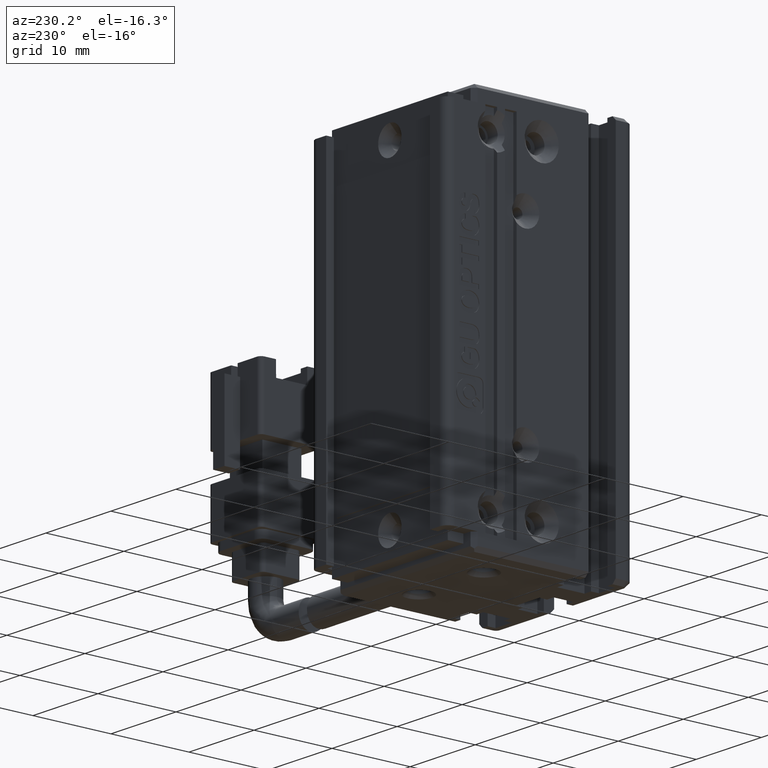
[diagram: clean part render]
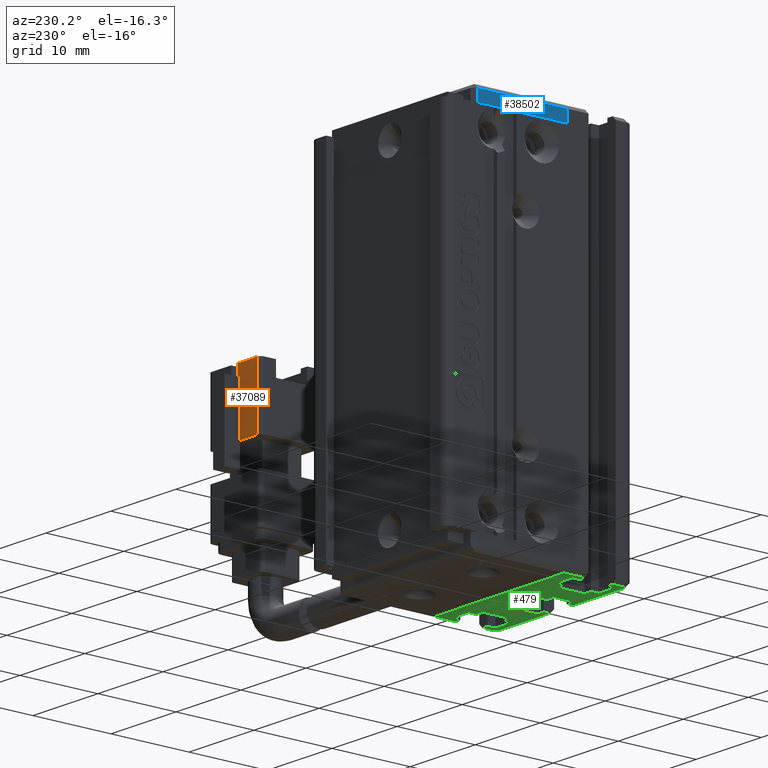
[diagram: same view with three faces highlighted in distinct colors, each labeled with its STEP entity id]
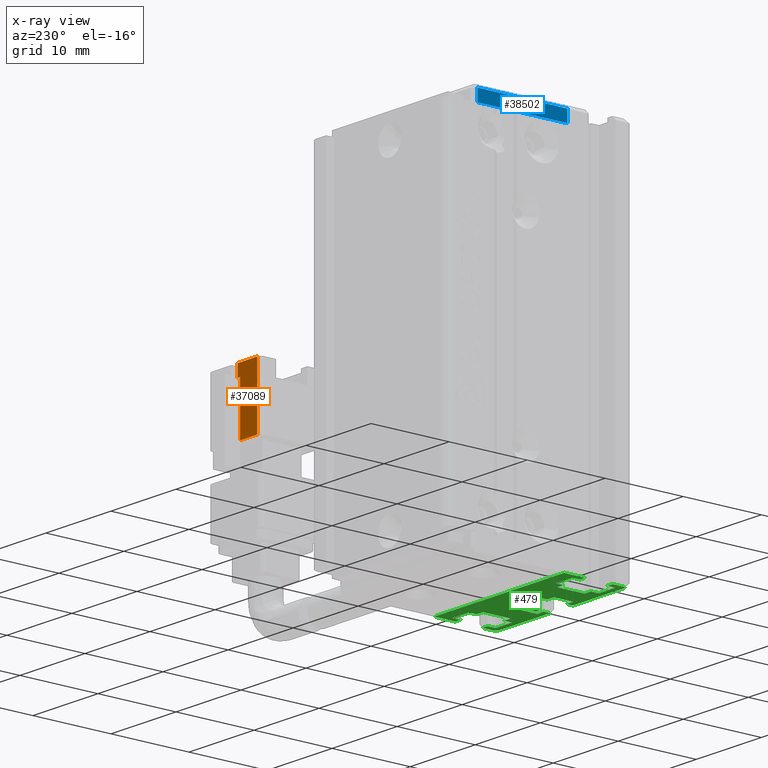
[diagram: x-ray of the same camera — body ghosted, the three highlighted faces saturated]
A machine part, auxiliary view with three faces highlighted in distinct colors.
The next image is the same camera in x-ray (body ghosted, the three faces saturated) — at least one of them is partly hidden behind the body in this view.
Their STEP definitions:

[orange] entity #37089 — the highlighted planar face has unit normal (0, -1, 0).
#3329 = CARTESIAN_POINT ( 'NONE',  ( 73.55037974683534700, 25.49073232304858600, -110.4500000000000000 ) ) ;
#3606 = CARTESIAN_POINT ( 'NONE',  ( 70.92537974683534700, 25.49073232304857600, -108.9500000000000000 ) ) ;
#3851 = DIRECTION ( 'NONE',  ( 3.428144012049399300E-015, -1.000000000000000000, 5.551115123125780200E-017 ) ) ;
#4547 = VECTOR ( 'NONE', #29387, 1000.000000000000000 ) ;
#5062 = VERTEX_POINT ( 'NONE', #26596 ) ;
#6724 = VECTOR ( 'NONE', #33673, 1000.000000000000000 ) ;
#7902 = FACE_OUTER_BOUND ( 'NONE', #37072, .T. ) ;
#7913 = CARTESIAN_POINT ( 'NONE',  ( 73.92537974683534700, 25.49073232304858600, -108.9500000000000000 ) ) ;
#8420 = ORIENTED_EDGE ( 'NONE', *, *, #9900, .F. ) ;
#8443 = ORIENTED_EDGE ( 'NONE', *, *, #26200, .F. ) ;
#9714 = PLANE ( 'NONE',  #18787 ) ;
#9900 = EDGE_CURVE ( 'NONE', #26946, #17420, #10588, .T. ) ;
#10588 = LINE ( 'NONE', #35092, #4547 ) ;
#10915 = VECTOR ( 'NONE', #21508, 1000.000000000000000 ) ;
#11242 = ORIENTED_EDGE ( 'NONE', *, *, #35385, .F. ) ;
#13291 = DIRECTION ( 'NONE',  ( 1.041348031262155300E-030, -5.551115123125780200E-017, -1.000000000000000000 ) ) ;
#13407 = CARTESIAN_POINT ( 'NONE',  ( 70.92537974683534700, 25.49073232304857600, -108.9500000000000000 ) ) ;
#13936 = LINE ( 'NONE', #23466, #34993 ) ;
#15108 = VERTEX_POINT ( 'NONE', #22713 ) ;
#15195 = VECTOR ( 'NONE', #13291, 1000.000000000000000 ) ;
#15701 = CARTESIAN_POINT ( 'NONE',  ( 74.92537974683534700, 25.49073232304859000, -110.4500000000000000 ) ) ;
#15712 = DIRECTION ( 'NONE',  ( -1.000000000000000000, -3.428144012049399300E-015, -8.510478105667503400E-031 ) ) ;
#17420 = VERTEX_POINT ( 'NONE', #3329 ) ;
#18787 = AXIS2_PLACEMENT_3D ( 'NONE', #3606, #3851, #15712 ) ;
#19405 = VECTOR ( 'NONE', #25468, 1000.000000000000000 ) ;
#19867 = LINE ( 'NONE', #15701, #10915 ) ;
#21508 = DIRECTION ( 'NONE',  ( -1.000000000000000000, -3.304235192336770000E-015, -8.579261317967046800E-031 ) ) ;
#22713 = CARTESIAN_POINT ( 'NONE',  ( 73.92537974683534700, 25.49073232304858600, -108.9500000000000000 ) ) ;
#23466 = CARTESIAN_POINT ( 'NONE',  ( 70.92537974683534700, 25.49073232304857600, -108.9500000000000000 ) ) ;
#24062 = LINE ( 'NONE', #24894, #6724 ) ;
#24280 = CARTESIAN_POINT ( 'NONE',  ( 70.92537974683534700, 25.49073232304857600, -116.9500000000000000 ) ) ;
#24894 = CARTESIAN_POINT ( 'NONE',  ( 77.92537974683534700, 25.49073232304859700, -116.9500000000000000 ) ) ;
#25468 = DIRECTION ( 'NONE',  ( -1.041348031262155300E-030, 5.551115123125780200E-017, 1.000000000000000000 ) ) ;
#25869 = CARTESIAN_POINT ( 'NONE',  ( 73.92537974683534700, 25.49073232304858600, -110.4500000000000000 ) ) ;
#26200 = EDGE_CURVE ( 'NONE', #5062, #38131, #28363, .T. ) ;
#26399 = VERTEX_POINT ( 'NONE', #25869 ) ;
#26596 = CARTESIAN_POINT ( 'NONE',  ( 70.92537974683534700, 25.49073232304857600, -108.9500000000000000 ) ) ;
#26946 = VERTEX_POINT ( 'NONE', #34570 ) ;
#28363 = LINE ( 'NONE', #13407, #15195 ) ;
#29279 = ORIENTED_EDGE ( 'NONE', *, *, #35047, .F. ) ;
#29360 = ORIENTED_EDGE ( 'NONE', *, *, #35377, .T. ) ;
#29387 = DIRECTION ( 'NONE',  ( -1.041348031262155300E-030, 5.551115123125780200E-017, 1.000000000000000000 ) ) ;
#32502 = DIRECTION ( 'NONE',  ( -1.000000000000000000, -3.428144012049399300E-015, -8.510478105667503400E-031 ) ) ;
#33673 = DIRECTION ( 'NONE',  ( 1.000000000000000000, 3.304235192336770000E-015, 8.579261317967046800E-031 ) ) ;
#34403 = LINE ( 'NONE', #7913, #19405 ) ;
#34570 = CARTESIAN_POINT ( 'NONE',  ( 73.55037974683534700, 25.49073232304858600, -116.9500000000000000 ) ) ;
#34993 = VECTOR ( 'NONE', #32502, 1000.000000000000000 ) ;
#35047 = EDGE_CURVE ( 'NONE', #26399, #15108, #34403, .T. ) ;
#35092 = CARTESIAN_POINT ( 'NONE',  ( 73.55037974683534700, 25.49073232304858600, -108.9500000000000000 ) ) ;
#35377 = EDGE_CURVE ( 'NONE', #26399, #17420, #19867, .T. ) ;
#35385 = EDGE_CURVE ( 'NONE', #38131, #26946, #24062, .T. ) ;
#36790 = ORIENTED_EDGE ( 'NONE', *, *, #38657, .F. ) ;
#37072 = EDGE_LOOP ( 'NONE', ( #8420, #11242, #8443, #36790, #29279, #29360 ) ) ;
#37089 = ADVANCED_FACE ( 'NONE', ( #7902 ), #9714, .F. ) ;
#38131 = VERTEX_POINT ( 'NONE', #24280 ) ;
#38657 = EDGE_CURVE ( 'NONE', #15108, #5062, #13936, .T. ) ;

[blue] entity #38502 — the highlighted planar face has unit normal (1, 0, 0).
#567 = DIRECTION ( 'NONE',  ( 0.0000000000000000000, 1.000000000000000000, 0.0000000000000000000 ) ) ;
#1203 = CARTESIAN_POINT ( 'NONE',  ( 30.42537974683542100, 19.49073232304837000, -91.50000000000001400 ) ) ;
#2361 = VERTEX_POINT ( 'NONE', #22756 ) ;
#3057 = ORIENTED_EDGE ( 'NONE', *, *, #6585, .F. ) ;
#3116 = LINE ( 'NONE', #15576, #33969 ) ;
#5065 = EDGE_LOOP ( 'NONE', ( #18022, #38801, #6761, #3057 ) ) ;
#5463 = CARTESIAN_POINT ( 'NONE',  ( 30.42537974683542100, 30.99073232304836600, -93.00000000000001400 ) ) ;
#6585 = EDGE_CURVE ( 'NONE', #23873, #17386, #34450, .T. ) ;
#6761 = ORIENTED_EDGE ( 'NONE', *, *, #18987, .T. ) ;
#9544 = CARTESIAN_POINT ( 'NONE',  ( 30.42537974683542100, 30.99073232304835900, -98.00000000000001400 ) ) ;
#11137 = CARTESIAN_POINT ( 'NONE',  ( 30.42537974683542100, 19.49073232304837000, -98.00000000000001400 ) ) ;
#11263 = DIRECTION ( 'NONE',  ( 1.000000000000000000, 0.0000000000000000000, 0.0000000000000000000 ) ) ;
#13315 = DIRECTION ( 'NONE',  ( -0.0000000000000000000, -0.0000000000000000000, 1.000000000000000000 ) ) ;
#13452 = VERTEX_POINT ( 'NONE', #5463 ) ;
#13482 = FACE_OUTER_BOUND ( 'NONE', #5065, .T. ) ;
#14237 = EDGE_CURVE ( 'NONE', #13452, #23873, #24817, .T. ) ;
#15320 = EDGE_CURVE ( 'NONE', #2361, #13452, #3116, .T. ) ;
#15576 = CARTESIAN_POINT ( 'NONE',  ( 30.42537974683542100, 19.49073232304837000, -93.00000000000001400 ) ) ;
#17386 = VERTEX_POINT ( 'NONE', #1203 ) ;
#17575 = DIRECTION ( 'NONE',  ( -0.0000000000000000000, -1.000000000000000000, -0.0000000000000000000 ) ) ;
#17758 = VECTOR ( 'NONE', #30523, 1000.000000000000000 ) ;
#18022 = ORIENTED_EDGE ( 'NONE', *, *, #14237, .F. ) ;
#18987 = EDGE_CURVE ( 'NONE', #2361, #17386, #37083, .T. ) ;
#19231 = CARTESIAN_POINT ( 'NONE',  ( 30.42537974683542100, 30.99073232304836600, -91.50000000000001400 ) ) ;
#22756 = CARTESIAN_POINT ( 'NONE',  ( 30.42537974683542100, 19.49073232304837000, -93.00000000000001400 ) ) ;
#23873 = VERTEX_POINT ( 'NONE', #19231 ) ;
#24817 = LINE ( 'NONE', #9544, #17758 ) ;
#24888 = AXIS2_PLACEMENT_3D ( 'NONE', #11137, #11263, #29126 ) ;
#28775 = CARTESIAN_POINT ( 'NONE',  ( 30.42537974683542100, 19.49073232304837000, -91.50000000000001400 ) ) ;
#29126 = DIRECTION ( 'NONE',  ( 0.0000000000000000000, 0.0000000000000000000, -1.000000000000000000 ) ) ;
#29245 = PLANE ( 'NONE',  #24888 ) ;
#30523 = DIRECTION ( 'NONE',  ( -0.0000000000000000000, -0.0000000000000000000, 1.000000000000000000 ) ) ;
#31297 = CARTESIAN_POINT ( 'NONE',  ( 30.42537974683542500, 19.49073232304837000, -98.00000000000001400 ) ) ;
#33969 = VECTOR ( 'NONE', #567, 1000.000000000000000 ) ;
#33998 = VECTOR ( 'NONE', #17575, 1000.000000000000000 ) ;
#34450 = LINE ( 'NONE', #28775, #33998 ) ;
#35716 = VECTOR ( 'NONE', #13315, 1000.000000000000000 ) ;
#37083 = LINE ( 'NONE', #31297, #35716 ) ;
#38502 = ADVANCED_FACE ( 'NONE', ( #13482 ), #29245, .F. ) ;
#38801 = ORIENTED_EDGE ( 'NONE', *, *, #15320, .F. ) ;

[green] entity #479 — the highlighted planar face has unit normal (-0, 0, 1).
#479 = ADVANCED_FACE ( 'NONE', ( #23830 ), #27968, .F. ) ;
#481 = AXIS2_PLACEMENT_3D ( 'NONE', #11800, #20358, #32691 ) ;
#577 = LINE ( 'NONE', #2190, #37074 ) ;
#753 = LINE ( 'NONE', #33788, #4029 ) ;
#872 = ORIENTED_EDGE ( 'NONE', *, *, #24630, .F. ) ;
#1078 = DIRECTION ( 'NONE',  ( -1.000000000000000000, -0.0000000000000000000, -0.0000000000000000000 ) ) ;
#1132 = LINE ( 'NONE', #36362, #32050 ) ;
#1142 = LINE ( 'NONE', #18196, #12822 ) ;
#1168 = CARTESIAN_POINT ( 'NONE',  ( 31.72537974683542600, 12.29073232304837200, -139.0000000000000000 ) ) ;
#1621 = DIRECTION ( 'NONE',  ( 1.000000000000000000, 0.0000000000000000000, 0.0000000000000000000 ) ) ;
#1889 = VERTEX_POINT ( 'NONE', #38742 ) ;
#1904 = LINE ( 'NONE', #22378, #15907 ) ;
#1905 = ORIENTED_EDGE ( 'NONE', *, *, #16272, .T. ) ;
#1932 = DIRECTION ( 'NONE',  ( 1.000000000000000000, 0.0000000000000000000, 0.0000000000000000000 ) ) ;
#2006 = VERTEX_POINT ( 'NONE', #20688 ) ;
#2106 = AXIS2_PLACEMENT_3D ( 'NONE', #9971, #21766, #18994 ) ;
#2187 = CIRCLE ( 'NONE', #481, 0.4999999999909122100 ) ;
#2190 = CARTESIAN_POINT ( 'NONE',  ( 47.62537974683537800, 7.083797468354414500, -139.0000000000000000 ) ) ;
#2421 = EDGE_CURVE ( 'NONE', #12544, #17037, #2657, .T. ) ;
#2657 = LINE ( 'NONE', #23399, #3155 ) ;
#2685 = VERTEX_POINT ( 'NONE', #6866 ) ;
#2703 = CARTESIAN_POINT ( 'NONE',  ( 34.22537974683547200, 7.083797468354414500, -139.0000000000000000 ) ) ;
#2783 = LINE ( 'NONE', #24554, #7887 ) ;
#2900 = DIRECTION ( 'NONE',  ( 3.469446951953607900E-015, -1.000000000000000000, 0.0000000000000000000 ) ) ;
#3155 = VECTOR ( 'NONE', #26540, 1000.000000000000000 ) ;
#3221 = EDGE_CURVE ( 'NONE', #5473, #2006, #8115, .T. ) ;
#3446 = VERTEX_POINT ( 'NONE', #22303 ) ;
#3469 = CARTESIAN_POINT ( 'NONE',  ( 31.72537974683542600, 17.79073232304837000, -139.0000000000000000 ) ) ;
#3472 = DIRECTION ( 'NONE',  ( 1.000000000000000000, 0.0000000000000000000, 0.0000000000000000000 ) ) ;
#3586 = CARTESIAN_POINT ( 'NONE',  ( 40.92537974683542500, 12.29073232304837200, -139.0000000000000000 ) ) ;
#3620 = ORIENTED_EDGE ( 'NONE', *, *, #8657, .T. ) ;
#3642 = DIRECTION ( 'NONE',  ( 0.0000000000000000000, -1.734723476219780400E-015, 1.000000000000000000 ) ) ;
#3908 = CARTESIAN_POINT ( 'NONE',  ( 50.12537974683542800, 16.79073232304837000, -139.0000000000000000 ) ) ;
#3955 = VERTEX_POINT ( 'NONE', #36261 ) ;
#4029 = VECTOR ( 'NONE', #3472, 1000.000000000000000 ) ;
#4124 = ORIENTED_EDGE ( 'NONE', *, *, #4442, .T. ) ;
#4156 = LINE ( 'NONE', #6136, #25696 ) ;
#4231 = LINE ( 'NONE', #19772, #19177 ) ;
#4415 = VECTOR ( 'NONE', #33270, 1000.000000000000000 ) ;
#4421 = VERTEX_POINT ( 'NONE', #11835 ) ;
#4442 = EDGE_CURVE ( 'NONE', #3955, #5249, #4156, .T. ) ;
#4525 = CARTESIAN_POINT ( 'NONE',  ( 40.92537974683542500, 17.79073232304837400, -139.0000000000000000 ) ) ;
#4645 = VERTEX_POINT ( 'NONE', #15070 ) ;
#4827 = EDGE_CURVE ( 'NONE', #37871, #34503, #28479, .T. ) ;
#4832 = CARTESIAN_POINT ( 'NONE',  ( 40.92537974683542500, 17.79073232304837000, -139.0000000000000000 ) ) ;
#4966 = VECTOR ( 'NONE', #1078, 1000.000000000000000 ) ;
#4974 = VERTEX_POINT ( 'NONE', #5151 ) ;
#5009 = ORIENTED_EDGE ( 'NONE', *, *, #19915, .T. ) ;
#5136 = ORIENTED_EDGE ( 'NONE', *, *, #25270, .T. ) ;
#5151 = CARTESIAN_POINT ( 'NONE',  ( 35.22537974683543600, 13.29073232304837000, -139.0000000000000000 ) ) ;
#5249 = VERTEX_POINT ( 'NONE', #1168 ) ;
#5473 = VERTEX_POINT ( 'NONE', #13699 ) ;
#5502 = CARTESIAN_POINT ( 'NONE',  ( 30.92537974683541400, 16.79073232304837400, -139.0000000000000000 ) ) ;
#5679 = VERTEX_POINT ( 'NONE', #8432 ) ;
#5713 = DIRECTION ( 'NONE',  ( 0.0000000000000000000, 1.000000000000000000, -0.0000000000000000000 ) ) ;
#5788 = EDGE_CURVE ( 'NONE', #4645, #14616, #28562, .T. ) ;
#6136 = CARTESIAN_POINT ( 'NONE',  ( 31.72537974683544000, 7.083797468354405600, -139.0000000000000000 ) ) ;
#6175 = CIRCLE ( 'NONE', #17482, 0.4999999999286026700 ) ;
#6227 = VERTEX_POINT ( 'NONE', #3908 ) ;
#6261 = ORIENTED_EDGE ( 'NONE', *, *, #13653, .F. ) ;
#6346 = ORIENTED_EDGE ( 'NONE', *, *, #17521, .F. ) ;
#6467 = EDGE_CURVE ( 'NONE', #12544, #9420, #33549, .T. ) ;
#6537 = VERTEX_POINT ( 'NONE', #22878 ) ;
#6571 = EDGE_CURVE ( 'NONE', #2006, #14353, #2187, .T. ) ;
#6806 = ORIENTED_EDGE ( 'NONE', *, *, #7362, .F. ) ;
#6856 = VERTEX_POINT ( 'NONE', #18355 ) ;
#6866 = CARTESIAN_POINT ( 'NONE',  ( 50.12537974683542800, 12.29073232304837200, -139.0000000000000000 ) ) ;
#6893 = VECTOR ( 'NONE', #37164, 1000.000000000000000 ) ;
#6943 = VERTEX_POINT ( 'NONE', #24786 ) ;
#7362 = EDGE_CURVE ( 'NONE', #38524, #33469, #34813, .T. ) ;
#7367 = DIRECTION ( 'NONE',  ( -1.000000000000000000, -2.602085213965209900E-015, 0.0000000000000000000 ) ) ;
#7532 = ORIENTED_EDGE ( 'NONE', *, *, #5788, .F. ) ;
#7691 = DIRECTION ( 'NONE',  ( 1.000000000000000000, 0.0000000000000000000, 0.0000000000000000000 ) ) ;
#7706 = ORIENTED_EDGE ( 'NONE', *, *, #13612, .T. ) ;
#7707 = CARTESIAN_POINT ( 'NONE',  ( 38.17537974683542500, 12.29073232304837200, -139.0000000000000000 ) ) ;
#7799 = CARTESIAN_POINT ( 'NONE',  ( 40.92537974683542500, 14.79073232304837000, -139.0000000000000000 ) ) ;
#7887 = VECTOR ( 'NONE', #18237, 1000.000000000000000 ) ;
#8115 = LINE ( 'NONE', #36052, #35744 ) ;
#8159 = VECTOR ( 'NONE', #34436, 1000.000000000000000 ) ;
#8168 = EDGE_CURVE ( 'NONE', #37284, #1889, #577, .T. ) ;
#8214 = VECTOR ( 'NONE', #20699, 1000.000000000000000 ) ;
#8432 = CARTESIAN_POINT ( 'NONE',  ( 50.12537974683542800, 13.29073232304837200, -139.0000000000000000 ) ) ;
#8445 = EDGE_LOOP ( 'NONE', ( #28901, #5009, #7532, #37425, #8949, #9635, #29599, #37981, #33255, #32390, #28173, #37462, #35774, #36503, #13380, #1905, #4124, #19706, #19173, #37452, #6261, #18023, #7706, #29554, #33074, #5136, #6806, #3620, #33855, #29016, #16132, #27164, #17620, #25434, #13985, #25919, #6346, #15853, #25026, #13535, #872, #25690 ) ) ;
#8531 = EDGE_CURVE ( 'NONE', #8874, #26152, #36999, .T. ) ;
#8657 = EDGE_CURVE ( 'NONE', #38524, #34457, #4231, .T. ) ;
#8870 = EDGE_CURVE ( 'NONE', #6943, #5679, #16782, .T. ) ;
#8874 = VERTEX_POINT ( 'NONE', #27374 ) ;
#8931 = LINE ( 'NONE', #7799, #35150 ) ;
#8949 = ORIENTED_EDGE ( 'NONE', *, *, #37855, .F. ) ;
#9420 = VERTEX_POINT ( 'NONE', #15358 ) ;
#9592 = CARTESIAN_POINT ( 'NONE',  ( 40.92537974683543900, 13.29073232304835500, -139.0000000000000000 ) ) ;
#9635 = ORIENTED_EDGE ( 'NONE', *, *, #32159, .F. ) ;
#9638 = LINE ( 'NONE', #20297, #8214 ) ;
#9665 = VECTOR ( 'NONE', #1932, 1000.000000000000000 ) ;
#9702 = DIRECTION ( 'NONE',  ( -3.469446951953607900E-015, -1.000000000000000000, 0.0000000000000000000 ) ) ;
#9725 = VERTEX_POINT ( 'NONE', #31746 ) ;
#9971 = CARTESIAN_POINT ( 'NONE',  ( 40.92537974683542500, 7.083797468354437600, -139.0000000000000000 ) ) ;
#10100 = VECTOR ( 'NONE', #19012, 1000.000000000000000 ) ;
#10670 = DIRECTION ( 'NONE',  ( -0.0000000000000000000, -1.000000000000000000, 0.0000000000000000000 ) ) ;
#10733 = CARTESIAN_POINT ( 'NONE',  ( 30.92537974683587300, 11.99073232304837000, -139.0000000000004500 ) ) ;
#10760 = VERTEX_POINT ( 'NONE', #14332 ) ;
#10970 = EDGE_CURVE ( 'NONE', #5679, #2685, #18268, .T. ) ;
#11097 = VERTEX_POINT ( 'NONE', #10733 ) ;
#11207 = VERTEX_POINT ( 'NONE', #38716 ) ;
#11244 = VECTOR ( 'NONE', #14374, 1000.000000000000000 ) ;
#11262 = VECTOR ( 'NONE', #16643, 1000.000000000000000 ) ;
#11800 = CARTESIAN_POINT ( 'NONE',  ( 50.42537974683541800, 11.99073232304837200, -139.0000000000577500 ) ) ;
#11835 = CARTESIAN_POINT ( 'NONE',  ( 38.17537974683542500, 14.79073232304837000, -139.0000000000000000 ) ) ;
#11850 = DIRECTION ( 'NONE',  ( 1.000000000000000000, 0.0000000000000000000, 0.0000000000000000000 ) ) ;
#12085 = EDGE_CURVE ( 'NONE', #9725, #11097, #25589, .T. ) ;
#12148 = CARTESIAN_POINT ( 'NONE',  ( 30.92537974683541800, 7.083797468354437600, -139.0000000000000000 ) ) ;
#12153 = DIRECTION ( 'NONE',  ( 1.000000000000000000, -1.734723475976807100E-015, 0.0000000000000000000 ) ) ;
#12544 = VERTEX_POINT ( 'NONE', #3469 ) ;
#12594 = LINE ( 'NONE', #16804, #22478 ) ;
#12610 = EDGE_CURVE ( 'NONE', #2685, #35335, #20867, .T. ) ;
#12822 = VECTOR ( 'NONE', #17939, 1000.000000000000000 ) ;
#13129 = VECTOR ( 'NONE', #29091, 1000.000000000000000 ) ;
#13380 = ORIENTED_EDGE ( 'NONE', *, *, #12085, .F. ) ;
#13535 = ORIENTED_EDGE ( 'NONE', *, *, #8870, .F. ) ;
#13612 = EDGE_CURVE ( 'NONE', #19175, #9420, #32915, .T. ) ;
#13653 = EDGE_CURVE ( 'NONE', #21186, #4974, #30089, .T. ) ;
#13699 = CARTESIAN_POINT ( 'NONE',  ( 42.67537974683542500, 11.49073232304837200, -139.0000000000000000 ) ) ;
#13730 = VECTOR ( 'NONE', #5713, 1000.000000000000000 ) ;
#13872 = DIRECTION ( 'NONE',  ( 0.0000000000000000000, 1.000000000000000000, 0.0000000000000000000 ) ) ;
#13985 = ORIENTED_EDGE ( 'NONE', *, *, #18768, .F. ) ;
#14152 = CARTESIAN_POINT ( 'NONE',  ( 39.17537974683542500, 12.29073232304837200, -139.0000000000000000 ) ) ;
#14323 = CARTESIAN_POINT ( 'NONE',  ( 39.17537974683542500, 15.79073232304837000, -139.0000000000000000 ) ) ;
#14332 = CARTESIAN_POINT ( 'NONE',  ( 47.62537974683541400, 13.29073232304837200, -139.0000000000000000 ) ) ;
#14353 = VERTEX_POINT ( 'NONE', #28167 ) ;
#14374 = DIRECTION ( 'NONE',  ( -1.000000000000000000, -0.0000000000000000000, 0.0000000000000000000 ) ) ;
#14380 = LINE ( 'NONE', #9592, #24290 ) ;
#14421 = CARTESIAN_POINT ( 'NONE',  ( 46.62537974683541400, 16.79073232304837400, -139.0000000000000000 ) ) ;
#14616 = VERTEX_POINT ( 'NONE', #20245 ) ;
#14761 = CARTESIAN_POINT ( 'NONE',  ( 31.42537974683542900, 11.49073232304881900, -139.0000000000004500 ) ) ;
#14895 = VECTOR ( 'NONE', #19149, 1000.000000000000000 ) ;
#15064 = LINE ( 'NONE', #15266, #22173 ) ;
#15070 = CARTESIAN_POINT ( 'NONE',  ( 43.67537974683542500, 12.29073232304837200, -139.0000000000000000 ) ) ;
#15259 = CARTESIAN_POINT ( 'NONE',  ( 34.22537974683543600, 13.29073232304837200, -139.0000000000000000 ) ) ;
#15266 = CARTESIAN_POINT ( 'NONE',  ( 40.92537974683542500, 13.29073232304837200, -139.0000000000000000 ) ) ;
#15351 = LINE ( 'NONE', #20321, #30389 ) ;
#15358 = CARTESIAN_POINT ( 'NONE',  ( 34.22537974683542900, 17.79073232304837000, -139.0000000000000000 ) ) ;
#15673 = DIRECTION ( 'NONE',  ( -1.000000000000000000, -0.0000000000000000000, 0.0000000000000000000 ) ) ;
#15728 = LINE ( 'NONE', #19260, #34492 ) ;
#15853 = ORIENTED_EDGE ( 'NONE', *, *, #12610, .F. ) ;
#15907 = VECTOR ( 'NONE', #25400, 1000.000000000000000 ) ;
#16132 = ORIENTED_EDGE ( 'NONE', *, *, #22344, .T. ) ;
#16272 = EDGE_CURVE ( 'NONE', #9725, #3955, #15064, .T. ) ;
#16643 = DIRECTION ( 'NONE',  ( 1.000000000000000000, 0.0000000000000000000, 0.0000000000000000000 ) ) ;
#16782 = LINE ( 'NONE', #33485, #20087 ) ;
#16804 = CARTESIAN_POINT ( 'NONE',  ( 50.92537974683541800, 7.083797468354437600, -139.0000000000000000 ) ) ;
#16918 = CARTESIAN_POINT ( 'NONE',  ( 42.67537974683542500, 7.083797468354437600, -139.0000000000000000 ) ) ;
#17037 = VERTEX_POINT ( 'NONE', #34717 ) ;
#17130 = CARTESIAN_POINT ( 'NONE',  ( 50.92537974683541800, 19.49073232304837000, -139.0000000000000000 ) ) ;
#17362 = VECTOR ( 'NONE', #24019, 1000.000000000000000 ) ;
#17482 = AXIS2_PLACEMENT_3D ( 'NONE', #18889, #3642, #24812 ) ;
#17521 = EDGE_CURVE ( 'NONE', #35335, #10760, #38733, .T. ) ;
#17620 = ORIENTED_EDGE ( 'NONE', *, *, #8168, .F. ) ;
#17799 = VERTEX_POINT ( 'NONE', #14761 ) ;
#17939 = DIRECTION ( 'NONE',  ( -0.0000000000000000000, -1.000000000000000000, 0.0000000000000000000 ) ) ;
#17943 = CARTESIAN_POINT ( 'NONE',  ( 35.22537974683543600, 7.083797468354437600, -139.0000000000000000 ) ) ;
#18023 = ORIENTED_EDGE ( 'NONE', *, *, #20070, .T. ) ;
#18196 = CARTESIAN_POINT ( 'NONE',  ( 39.17537974683542500, 7.083797468354437600, -139.0000000000000000 ) ) ;
#18219 = DIRECTION ( 'NONE',  ( 1.000000000000000000, 0.0000000000000000000, 0.0000000000000000000 ) ) ;
#18237 = DIRECTION ( 'NONE',  ( -3.469446951953610200E-015, 1.000000000000000000, 0.0000000000000000000 ) ) ;
#18268 = LINE ( 'NONE', #36771, #20671 ) ;
#18355 = CARTESIAN_POINT ( 'NONE',  ( 42.67537974683542500, 15.79073232304837000, -139.0000000000000000 ) ) ;
#18371 = CARTESIAN_POINT ( 'NONE',  ( 50.92537974683541800, 16.79073232304837000, -139.0000000000000000 ) ) ;
#18579 = CARTESIAN_POINT ( 'NONE',  ( 40.92537974683543900, 16.79073232304838100, -139.0000000000000000 ) ) ;
#18768 = EDGE_CURVE ( 'NONE', #27989, #25309, #32059, .T. ) ;
#18889 = CARTESIAN_POINT ( 'NONE',  ( 31.42537974683542900, 11.99073232304837200, -139.0000000000009100 ) ) ;
#18994 = DIRECTION ( 'NONE',  ( 1.000000000000000000, 0.0000000000000000000, 0.0000000000000000000 ) ) ;
#19012 = DIRECTION ( 'NONE',  ( -0.0000000000000000000, -1.000000000000000000, 0.0000000000000000000 ) ) ;
#19040 = EDGE_CURVE ( 'NONE', #34006, #6856, #27802, .T. ) ;
#19149 = DIRECTION ( 'NONE',  ( -1.000000000000000000, -0.0000000000000000000, -0.0000000000000000000 ) ) ;
#19173 = ORIENTED_EDGE ( 'NONE', *, *, #8531, .T. ) ;
#19175 = VERTEX_POINT ( 'NONE', #20247 ) ;
#19177 = VECTOR ( 'NONE', #32745, 1000.000000000000000 ) ;
#19235 = LINE ( 'NONE', #34608, #11262 ) ;
#19260 = CARTESIAN_POINT ( 'NONE',  ( 42.67537974683542500, 7.083797468354437600, -139.0000000000000000 ) ) ;
#19350 = VERTEX_POINT ( 'NONE', #18371 ) ;
#19386 = EDGE_CURVE ( 'NONE', #11097, #17799, #6175, .T. ) ;
#19706 = ORIENTED_EDGE ( 'NONE', *, *, #25022, .F. ) ;
#19772 = CARTESIAN_POINT ( 'NONE',  ( 40.92537974683542500, 19.49073232304837000, -139.0000000000000000 ) ) ;
#19915 = EDGE_CURVE ( 'NONE', #5473, #14616, #15728, .T. ) ;
#20070 = EDGE_CURVE ( 'NONE', #21186, #19175, #9638, .T. ) ;
#20087 = VECTOR ( 'NONE', #30116, 1000.000000000000000 ) ;
#20236 = DIRECTION ( 'NONE',  ( 0.0000000000000000000, 1.000000000000000000, -0.0000000000000000000 ) ) ;
#20245 = CARTESIAN_POINT ( 'NONE',  ( 42.67537974683542500, 12.29073232304837200, -139.0000000000000000 ) ) ;
#20247 = CARTESIAN_POINT ( 'NONE',  ( 34.22537974683543600, 16.79073232304837400, -139.0000000000000000 ) ) ;
#20297 = CARTESIAN_POINT ( 'NONE',  ( 40.92537974683543900, 16.79073232304836000, -139.0000000000000000 ) ) ;
#20321 = CARTESIAN_POINT ( 'NONE',  ( 40.92537974683542500, 16.79073232304837400, -139.0000000000000000 ) ) ;
#20358 = DIRECTION ( 'NONE',  ( 0.0000000000000000000, -1.734723476013086000E-015, 1.000000000000000000 ) ) ;
#20671 = VECTOR ( 'NONE', #9702, 1000.000000000000000 ) ;
#20688 = CARTESIAN_POINT ( 'NONE',  ( 50.42537974683541800, 11.49073232307724800, -139.0000000000288800 ) ) ;
#20699 = DIRECTION ( 'NONE',  ( -1.000000000000000000, 1.734723475976807100E-015, 0.0000000000000000000 ) ) ;
#20778 = LINE ( 'NONE', #34995, #13730 ) ;
#20867 = LINE ( 'NONE', #3586, #4966 ) ;
#21186 = VERTEX_POINT ( 'NONE', #26749 ) ;
#21193 = VECTOR ( 'NONE', #7367, 1000.000000000000000 ) ;
#21766 = DIRECTION ( 'NONE',  ( -0.0000000000000000000, 0.0000000000000000000, 1.000000000000000000 ) ) ;
#21984 = DIRECTION ( 'NONE',  ( -0.0000000000000000000, -1.000000000000000000, 0.0000000000000000000 ) ) ;
#22173 = VECTOR ( 'NONE', #11850, 1000.000000000000000 ) ;
#22303 = CARTESIAN_POINT ( 'NONE',  ( 43.67537974683542500, 14.79073232304837000, -139.0000000000000000 ) ) ;
#22344 = EDGE_CURVE ( 'NONE', #6227, #11207, #2783, .T. ) ;
#22378 = CARTESIAN_POINT ( 'NONE',  ( 38.17537974683542500, 7.083797468354437600, -139.0000000000000000 ) ) ;
#22448 = CARTESIAN_POINT ( 'NONE',  ( 30.92537974683542100, 7.083797468354437600, -139.0000000000000000 ) ) ;
#22478 = VECTOR ( 'NONE', #20236, 1000.000000000000000 ) ;
#22533 = CARTESIAN_POINT ( 'NONE',  ( 34.22537974683541500, 7.083797468354461600, -139.0000000000000000 ) ) ;
#22675 = CARTESIAN_POINT ( 'NONE',  ( 39.17537974683542500, 7.083797468354437600, -139.0000000000000000 ) ) ;
#22700 = CARTESIAN_POINT ( 'NONE',  ( 42.67537974683542500, 14.79073232304837000, -139.0000000000000000 ) ) ;
#22878 = CARTESIAN_POINT ( 'NONE',  ( 39.17537974683542500, 14.79073232304837000, -139.0000000000000000 ) ) ;
#22928 = EDGE_CURVE ( 'NONE', #6227, #19350, #753, .T. ) ;
#23156 = EDGE_CURVE ( 'NONE', #17799, #37871, #23187, .T. ) ;
#23187 = LINE ( 'NONE', #25931, #32539 ) ;
#23349 = DIRECTION ( 'NONE',  ( -1.000000000000000000, -0.0000000000000000000, 0.0000000000000000000 ) ) ;
#23399 = CARTESIAN_POINT ( 'NONE',  ( 31.72537974683539000, 7.083797468354469600, -139.0000000000000000 ) ) ;
#23615 = DIRECTION ( 'NONE',  ( -3.469446951953635100E-015, 1.000000000000000000, 0.0000000000000000000 ) ) ;
#23830 = FACE_OUTER_BOUND ( 'NONE', #8445, .T. ) ;
#24019 = DIRECTION ( 'NONE',  ( -0.0000000000000000000, -1.000000000000000000, 0.0000000000000000000 ) ) ;
#24290 = VECTOR ( 'NONE', #36410, 1000.000000000000000 ) ;
#24430 = VECTOR ( 'NONE', #23615, 1000.000000000000000 ) ;
#24554 = CARTESIAN_POINT ( 'NONE',  ( 50.12537974683544900, 7.083797468354469600, -139.0000000000000000 ) ) ;
#24630 = EDGE_CURVE ( 'NONE', #14353, #6943, #12594, .T. ) ;
#24786 = CARTESIAN_POINT ( 'NONE',  ( 50.92537974683541800, 13.29073232304837200, -139.0000000000000000 ) ) ;
#24812 = DIRECTION ( 'NONE',  ( 0.0000000000000000000, -1.000000000000000000, 0.0000000000000000000 ) ) ;
#25022 = EDGE_CURVE ( 'NONE', #8874, #5249, #38343, .T. ) ;
#25026 = ORIENTED_EDGE ( 'NONE', *, *, #10970, .F. ) ;
#25270 = EDGE_CURVE ( 'NONE', #17037, #33469, #15351, .T. ) ;
#25309 = VERTEX_POINT ( 'NONE', #14421 ) ;
#25400 = DIRECTION ( 'NONE',  ( 0.0000000000000000000, 1.000000000000000000, -0.0000000000000000000 ) ) ;
#25434 = ORIENTED_EDGE ( 'NONE', *, *, #25558, .F. ) ;
#25558 = EDGE_CURVE ( 'NONE', #25309, #37284, #38744, .T. ) ;
#25589 = LINE ( 'NONE', #22448, #10100 ) ;
#25690 = ORIENTED_EDGE ( 'NONE', *, *, #6571, .F. ) ;
#25696 = VECTOR ( 'NONE', #2900, 1000.000000000000000 ) ;
#25919 = ORIENTED_EDGE ( 'NONE', *, *, #29380, .F. ) ;
#25931 = CARTESIAN_POINT ( 'NONE',  ( 40.92537974683542500, 11.49073232304836300, -139.0000000000000000 ) ) ;
#26152 = VERTEX_POINT ( 'NONE', #15259 ) ;
#26431 = CARTESIAN_POINT ( 'NONE',  ( 47.62537974683541400, 16.79073232304837000, -139.0000000000000000 ) ) ;
#26475 = EDGE_CURVE ( 'NONE', #19350, #34457, #20778, .T. ) ;
#26540 = DIRECTION ( 'NONE',  ( -3.469446951953635100E-015, -1.000000000000000000, 0.0000000000000000000 ) ) ;
#26749 = CARTESIAN_POINT ( 'NONE',  ( 35.22537974683543600, 16.79073232304837400, -139.0000000000000000 ) ) ;
#27144 = LINE ( 'NONE', #4525, #30431 ) ;
#27164 = ORIENTED_EDGE ( 'NONE', *, *, #38434, .F. ) ;
#27374 = CARTESIAN_POINT ( 'NONE',  ( 34.22537974683542900, 12.29073232304837200, -139.0000000000000000 ) ) ;
#27423 = EDGE_CURVE ( 'NONE', #35971, #4421, #1904, .T. ) ;
#27432 = CARTESIAN_POINT ( 'NONE',  ( 47.62537974683541400, 12.29073232304837200, -139.0000000000000000 ) ) ;
#27723 = LINE ( 'NONE', #32744, #11244 ) ;
#27802 = LINE ( 'NONE', #28796, #34770 ) ;
#27968 = PLANE ( 'NONE',  #2106 ) ;
#27989 = VERTEX_POINT ( 'NONE', #28136 ) ;
#28115 = CARTESIAN_POINT ( 'NONE',  ( 40.92537974683542500, 12.29073232304837200, -139.0000000000000000 ) ) ;
#28136 = CARTESIAN_POINT ( 'NONE',  ( 46.62537974683541400, 13.29073232304837200, -139.0000000000000000 ) ) ;
#28167 = CARTESIAN_POINT ( 'NONE',  ( 50.92537974680654100, 11.99073232304837000, -139.0000000000288800 ) ) ;
#28173 = ORIENTED_EDGE ( 'NONE', *, *, #36691, .T. ) ;
#28448 = EDGE_CURVE ( 'NONE', #26152, #4974, #14380, .T. ) ;
#28479 = LINE ( 'NONE', #22675, #35433 ) ;
#28562 = LINE ( 'NONE', #30402, #30434 ) ;
#28796 = CARTESIAN_POINT ( 'NONE',  ( 40.92537974683542500, 15.79073232304837000, -139.0000000000000000 ) ) ;
#28890 = EDGE_CURVE ( 'NONE', #3446, #4645, #1132, .T. ) ;
#28901 = ORIENTED_EDGE ( 'NONE', *, *, #3221, .F. ) ;
#29016 = ORIENTED_EDGE ( 'NONE', *, *, #22928, .F. ) ;
#29025 = DIRECTION ( 'NONE',  ( 3.469446951953610200E-015, 1.000000000000000000, 0.0000000000000000000 ) ) ;
#29034 = CARTESIAN_POINT ( 'NONE',  ( 39.17537974683542500, 11.49073232304837300, -139.0000000000000000 ) ) ;
#29091 = DIRECTION ( 'NONE',  ( 3.469446951953607900E-015, 1.000000000000000000, 0.0000000000000000000 ) ) ;
#29380 = EDGE_CURVE ( 'NONE', #10760, #27989, #32942, .T. ) ;
#29416 = VECTOR ( 'NONE', #12153, 1000.000000000000000 ) ;
#29554 = ORIENTED_EDGE ( 'NONE', *, *, #6467, .F. ) ;
#29599 = ORIENTED_EDGE ( 'NONE', *, *, #19040, .F. ) ;
#30089 = LINE ( 'NONE', #17943, #17362 ) ;
#30116 = DIRECTION ( 'NONE',  ( -1.000000000000000000, -0.0000000000000000000, 0.0000000000000000000 ) ) ;
#30389 = VECTOR ( 'NONE', #23349, 1000.000000000000000 ) ;
#30402 = CARTESIAN_POINT ( 'NONE',  ( 40.92537974683542500, 12.29073232304837200, -139.0000000000000000 ) ) ;
#30431 = VECTOR ( 'NONE', #1621, 1000.000000000000000 ) ;
#30434 = VECTOR ( 'NONE', #15673, 1000.000000000000000 ) ;
#31108 = CARTESIAN_POINT ( 'NONE',  ( 46.62537974683541400, 7.083797468354437600, -139.0000000000000000 ) ) ;
#31487 = DIRECTION ( 'NONE',  ( 0.0000000000000000000, 1.000000000000000000, 0.0000000000000000000 ) ) ;
#31746 = CARTESIAN_POINT ( 'NONE',  ( 30.92537974683542100, 13.29073232304837200, -139.0000000000000000 ) ) ;
#31965 = DIRECTION ( 'NONE',  ( 1.000000000000000000, 0.0000000000000000000, 0.0000000000000000000 ) ) ;
#32050 = VECTOR ( 'NONE', #21984, 1000.000000000000000 ) ;
#32059 = LINE ( 'NONE', #31108, #8159 ) ;
#32159 = EDGE_CURVE ( 'NONE', #6856, #34388, #33458, .T. ) ;
#32390 = ORIENTED_EDGE ( 'NONE', *, *, #27423, .F. ) ;
#32539 = VECTOR ( 'NONE', #31965, 1000.000000000000000 ) ;
#32691 = DIRECTION ( 'NONE',  ( 0.0000000000000000000, -1.000000000000000000, 0.0000000000000000000 ) ) ;
#32744 = CARTESIAN_POINT ( 'NONE',  ( 40.92537974683542500, 14.79073232304837000, -139.0000000000000000 ) ) ;
#32745 = DIRECTION ( 'NONE',  ( 1.000000000000000000, 0.0000000000000000000, 0.0000000000000000000 ) ) ;
#32915 = LINE ( 'NONE', #2703, #24430 ) ;
#32942 = LINE ( 'NONE', #37823, #21193 ) ;
#33074 = ORIENTED_EDGE ( 'NONE', *, *, #2421, .T. ) ;
#33255 = ORIENTED_EDGE ( 'NONE', *, *, #33459, .T. ) ;
#33270 = DIRECTION ( 'NONE',  ( -0.0000000000000000000, -1.000000000000000000, 0.0000000000000000000 ) ) ;
#33458 = LINE ( 'NONE', #16918, #37175 ) ;
#33459 = EDGE_CURVE ( 'NONE', #6537, #4421, #27723, .T. ) ;
#33469 = VERTEX_POINT ( 'NONE', #5502 ) ;
#33485 = CARTESIAN_POINT ( 'NONE',  ( 40.92537974683542500, 13.29073232304837200, -139.0000000000000000 ) ) ;
#33549 = LINE ( 'NONE', #4832, #9665 ) ;
#33788 = CARTESIAN_POINT ( 'NONE',  ( 40.92537974683542500, 16.79073232304837000, -139.0000000000000000 ) ) ;
#33855 = ORIENTED_EDGE ( 'NONE', *, *, #26475, .F. ) ;
#34006 = VERTEX_POINT ( 'NONE', #14323 ) ;
#34388 = VERTEX_POINT ( 'NONE', #22700 ) ;
#34436 = DIRECTION ( 'NONE',  ( 0.0000000000000000000, 1.000000000000000000, -0.0000000000000000000 ) ) ;
#34457 = VERTEX_POINT ( 'NONE', #17130 ) ;
#34492 = VECTOR ( 'NONE', #31487, 1000.000000000000000 ) ;
#34503 = VERTEX_POINT ( 'NONE', #14152 ) ;
#34608 = CARTESIAN_POINT ( 'NONE',  ( 40.92537974683542500, 12.29073232304837200, -139.0000000000000000 ) ) ;
#34627 = DIRECTION ( 'NONE',  ( 1.000000000000000000, 0.0000000000000000000, 0.0000000000000000000 ) ) ;
#34717 = CARTESIAN_POINT ( 'NONE',  ( 31.72537974683542600, 16.79073232304837400, -139.0000000000000000 ) ) ;
#34770 = VECTOR ( 'NONE', #7691, 1000.000000000000000 ) ;
#34813 = LINE ( 'NONE', #12148, #4415 ) ;
#34821 = CARTESIAN_POINT ( 'NONE',  ( 30.92537974683541800, 19.49073232304837000, -139.0000000000000000 ) ) ;
#34995 = CARTESIAN_POINT ( 'NONE',  ( 50.92537974683541100, 7.083797468354437600, -139.0000000000000000 ) ) ;
#35150 = VECTOR ( 'NONE', #34627, 1000.000000000000000 ) ;
#35268 = EDGE_CURVE ( 'NONE', #34006, #6537, #1142, .T. ) ;
#35335 = VERTEX_POINT ( 'NONE', #27432 ) ;
#35433 = VECTOR ( 'NONE', #13872, 1000.000000000000000 ) ;
#35744 = VECTOR ( 'NONE', #18219, 1000.000000000000000 ) ;
#35774 = ORIENTED_EDGE ( 'NONE', *, *, #23156, .F. ) ;
#35971 = VERTEX_POINT ( 'NONE', #7707 ) ;
#36052 = CARTESIAN_POINT ( 'NONE',  ( 40.92537974683542500, 11.49073232304837200, -139.0000000000000000 ) ) ;
#36261 = CARTESIAN_POINT ( 'NONE',  ( 31.72537974683542600, 13.29073232304837200, -139.0000000000000000 ) ) ;
#36362 = CARTESIAN_POINT ( 'NONE',  ( 43.67537974683542500, 7.083797468354437600, -139.0000000000000000 ) ) ;
#36410 = DIRECTION ( 'NONE',  ( 1.000000000000000000, -2.602085213965209900E-015, 0.0000000000000000000 ) ) ;
#36503 = ORIENTED_EDGE ( 'NONE', *, *, #19386, .F. ) ;
#36691 = EDGE_CURVE ( 'NONE', #35971, #34503, #19235, .T. ) ;
#36771 = CARTESIAN_POINT ( 'NONE',  ( 50.12537974683540700, 7.083797468354405600, -139.0000000000000000 ) ) ;
#36999 = LINE ( 'NONE', #22533, #13129 ) ;
#37074 = VECTOR ( 'NONE', #29025, 1000.000000000000000 ) ;
#37164 = DIRECTION ( 'NONE',  ( -3.469446951953607900E-015, 1.000000000000000000, 0.0000000000000000000 ) ) ;
#37175 = VECTOR ( 'NONE', #10670, 1000.000000000000000 ) ;
#37284 = VERTEX_POINT ( 'NONE', #26431 ) ;
#37425 = ORIENTED_EDGE ( 'NONE', *, *, #28890, .F. ) ;
#37452 = ORIENTED_EDGE ( 'NONE', *, *, #28448, .T. ) ;
#37462 = ORIENTED_EDGE ( 'NONE', *, *, #4827, .F. ) ;
#37552 = CARTESIAN_POINT ( 'NONE',  ( 47.62537974683543500, 7.083797468354461600, -139.0000000000000000 ) ) ;
#37823 = CARTESIAN_POINT ( 'NONE',  ( 40.92537974683541100, 13.29073232304835500, -139.0000000000000000 ) ) ;
#37855 = EDGE_CURVE ( 'NONE', #34388, #3446, #8931, .T. ) ;
#37871 = VERTEX_POINT ( 'NONE', #29034 ) ;
#37981 = ORIENTED_EDGE ( 'NONE', *, *, #35268, .T. ) ;
#38343 = LINE ( 'NONE', #28115, #14895 ) ;
#38434 = EDGE_CURVE ( 'NONE', #1889, #11207, #27144, .T. ) ;
#38524 = VERTEX_POINT ( 'NONE', #34821 ) ;
#38716 = CARTESIAN_POINT ( 'NONE',  ( 50.12537974683542100, 17.79073232304837400, -139.0000000000000000 ) ) ;
#38733 = LINE ( 'NONE', #37552, #6893 ) ;
#38742 = CARTESIAN_POINT ( 'NONE',  ( 47.62537974683541400, 17.79073232304837400, -139.0000000000000000 ) ) ;
#38744 = LINE ( 'NONE', #18579, #29416 ) ;